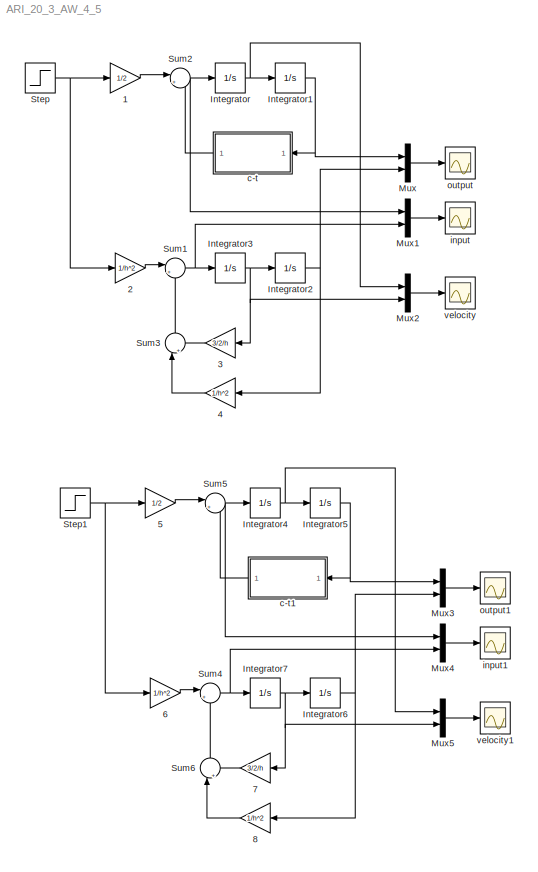
MODEL ARI_20_3_AW_4_5
KIND model
BLOCK [Gain] 1
  Gain = 1/2
  OutDataTypeStr = Inherit: Inherit via internal rule
  ParamDataTypeStr = Inherit: Inherit via internal rule
  SID = 1
  SaturateOnIntegerOverflow = off
BLOCK [Gain] 2
  Gain = 1/h^2
  OutDataTypeStr = Inherit: Inherit via internal rule
  ParamDataTypeStr = Inherit: Inherit via internal rule
  SID = 2
  SaturateOnIntegerOverflow = off
BLOCK [Gain] 3
  Gain = 3/2/h
  OutDataTypeStr = Inherit: Inherit via internal rule
  ParamDataTypeStr = Inherit: Inherit via internal rule
  SID = 3
  SampleTime = h
  SaturateOnIntegerOverflow = off
BLOCK [Gain] 4
  Gain = 1/h^2
  OutDataTypeStr = Inherit: Inherit via internal rule
  ParamDataTypeStr = Inherit: Inherit via internal rule
  SID = 4
  SampleTime = h
  SaturateOnIntegerOverflow = off
BLOCK [Gain] 5
  Gain = 1/2
  OutDataTypeStr = Inherit: Inherit via internal rule
  ParamDataTypeStr = Inherit: Inherit via internal rule
  SID = 5
  SaturateOnIntegerOverflow = off
BLOCK [Gain] 6
  Gain = 1/h^2
  OutDataTypeStr = Inherit: Inherit via internal rule
  ParamDataTypeStr = Inherit: Inherit via internal rule
  SID = 6
  SaturateOnIntegerOverflow = off
BLOCK [Gain] 7
  Gain = 3/2/h
  OutDataTypeStr = Inherit: Inherit via internal rule
  ParamDataTypeStr = Inherit: Inherit via internal rule
  SID = 7
  SampleTime = h
  SaturateOnIntegerOverflow = off
BLOCK [Gain] 8
  Gain = 1/h^2
  OutDataTypeStr = Inherit: Inherit via internal rule
  ParamDataTypeStr = Inherit: Inherit via internal rule
  SID = 8
  SampleTime = h
  SaturateOnIntegerOverflow = off
BLOCK [Integrator] Integrator
  Ports = [1, 1]
  SID = 9
BLOCK [Integrator] Integrator1
  Ports = [1, 1]
  SID = 10
BLOCK [Integrator] Integrator2
  Ports = [1, 1]
  SID = 11
BLOCK [Integrator] Integrator3
  Ports = [1, 1]
  SID = 12
BLOCK [Integrator] Integrator4
  InitialCondition = 2
  Ports = [1, 1]
  SID = 13
BLOCK [Integrator] Integrator5
  InitialCondition = -1
  Ports = [1, 1]
  SID = 14
BLOCK [Integrator] Integrator6
  InitialCondition = -1
  Ports = [1, 1]
  SID = 15
BLOCK [Integrator] Integrator7
  InitialCondition = 2
  Ports = [1, 1]
  SID = 16
BLOCK [Mux] Mux
  DisplayOption = bar
  Inputs = 2
  Ports = [2, 1]
  SID = 17
BLOCK [Mux] Mux1
  DisplayOption = bar
  Inputs = 2
  Ports = [2, 1]
  SID = 18
BLOCK [Mux] Mux2
  DisplayOption = bar
  Inputs = 2
  Ports = [2, 1]
  SID = 19
BLOCK [Mux] Mux3
  DisplayOption = bar
  Inputs = 2
  Ports = [2, 1]
  SID = 20
BLOCK [Mux] Mux4
  DisplayOption = bar
  Inputs = 2
  Ports = [2, 1]
  SID = 21
BLOCK [Mux] Mux5
  DisplayOption = bar
  Inputs = 2
  Ports = [2, 1]
  SID = 22
BLOCK [Step] Step
  SID = 23
  SampleTime = 0
  Time = 0
BLOCK [Step] Step1
  SID = 24
  SampleTime = 0
  Time = 0
BLOCK [Sum] Sum1
  IconShape = round
  InputSameDT = off
  Inputs = |+-
  OutDataTypeStr = Inherit: Inherit via internal rule
  Ports = [2, 1]
  SID = 25
  SaturateOnIntegerOverflow = off
BLOCK [Sum] Sum2
  IconShape = round
  InputSameDT = off
  Inputs = |+-
  OutDataTypeStr = Inherit: Inherit via internal rule
  Ports = [2, 1]
  SID = 26
  SaturateOnIntegerOverflow = off
BLOCK [Sum] Sum3
  IconShape = round
  InputSameDT = off
  Inputs = |++
  OutDataTypeStr = Inherit: Inherit via internal rule
  Ports = [2, 1]
  SID = 27
  SaturateOnIntegerOverflow = off
BLOCK [Sum] Sum4
  IconShape = round
  InputSameDT = off
  Inputs = |+-
  OutDataTypeStr = Inherit: Inherit via internal rule
  Ports = [2, 1]
  SID = 28
  SaturateOnIntegerOverflow = off
BLOCK [Sum] Sum5
  IconShape = round
  InputSameDT = off
  Inputs = |+-
  OutDataTypeStr = Inherit: Inherit via internal rule
  Ports = [2, 1]
  SID = 29
  SaturateOnIntegerOverflow = off
BLOCK [Sum] Sum6
  IconShape = round
  InputSameDT = off
  Inputs = |++
  OutDataTypeStr = Inherit: Inherit via internal rule
  Ports = [2, 1]
  SID = 30
  SaturateOnIntegerOverflow = off
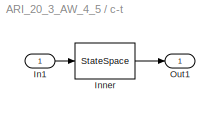
BLOCK [SubSystem] c-t
  FunctionWithSeparateData = off
  MaskCallbackString = |||
  MaskDescription = Polynomial matrix fraction description of a linear system.\n\nThis block represents a linear system defined by the polynomial matrix fraction of its transfer function.
  MaskDisplay = droots([-.5], [-2], 2)\n
  MaskEnableString = on,on,on,on
  MaskHelp = This block represents a linear system [<I>A,B,C,D</I>] defined by the polynomial matrix fraction (<I>PMF</I>) of its transfer function <I>T</I>.  \n<p>\n<b>Left Matrix Fraction</b> item of the popup menu <b>Type</b> indicates the transfer function in the form of <I>left PMF</I>:  \n<p>\n<I>T</I> = inv(<I>Q</I>) <I>P</I>.\n<p> \n<b>Right Matrix Fraction</b> item is used if the transfer function is ...<+1109ch>
  MaskHideContents = off
  MaskIconFrame = on
  MaskIconOpaque = on
  MaskIconRotate = none
  MaskIconUnits = autoscale
  MaskInitialization = Label = 'xxx';\n[A,B,C,D,Label,var] = polymask2(F, fvar, length(InCon));\nupdate;\n
  MaskPortRotate = default
  MaskPromptString = PMF Object:|Initial states:|Sample time (discrete time only):|Force variable:
  MaskStyleString = edit,edit,edit,popup(No change|s   (continous time)|p   (continous time)|z      (discrete time)|q      (discrete time)|d      (discrete time)|z^-1 (discrete time))
  MaskToolTipString = on,on,on,on
  MaskTunableValueString = on,on,on,on
  MaskType = PMF Block
  MaskValueString = 2*(s+.5)/(s+2)|[ ]|1|No change
  MaskVariables = F=&1;InCon=@2;SampTime=@3;fvar=@4;
  MaskVisibilityString = on,on,on,on
  MinAlgLoopOccurrences = off
  Opaque = off
  Ports = [1, 1]
  PropExecContextOutsideSubsystem = off
  RTWSystemCode = Auto
  RequestExecContextInheritance = off
  SID = 31
BLOCK [Inport] c-t/In1
  IconDisplay = Port number
  SID = 32
BLOCK [StateSpace] c-t/Inner
  A = A
  B = B
  C = C
  D = D
  SID = 33
  X0 = InCon
BLOCK [Outport] c-t/Out1
  IconDisplay = Port number
  SID = 34
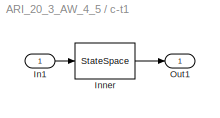
BLOCK [SubSystem] c-t1
  FunctionWithSeparateData = off
  MaskCallbackString = |||
  MaskDescription = Polynomial matrix fraction description of a linear system.\n\nThis block represents a linear system defined by the polynomial matrix fraction of its transfer function.
  MaskDisplay = droots([-.5], [-2], 2)\n
  MaskEnableString = on,on,on,on
  MaskHelp = This block represents a linear system [<I>A,B,C,D</I>] defined by the polynomial matrix fraction (<I>PMF</I>) of its transfer function <I>T</I>.  \n<p>\n<b>Left Matrix Fraction</b> item of the popup menu <b>Type</b> indicates the transfer function in the form of <I>left PMF</I>:  \n<p>\n<I>T</I> = inv(<I>Q</I>) <I>P</I>.\n<p> \n<b>Right Matrix Fraction</b> item is used if the transfer function is ...<+1109ch>
  MaskHideContents = off
  MaskIconFrame = on
  MaskIconOpaque = on
  MaskIconRotate = none
  MaskIconUnits = autoscale
  MaskInitialization = Label = 'xxx';\n[A,B,C,D,Label,var] = polymask2(F, fvar, length(InCon));\nupdate;\n
  MaskPortRotate = default
  MaskPromptString = PMF Object:|Initial states:|Sample time (discrete time only):|Force variable:
  MaskStyleString = edit,edit,edit,popup(No change|s   (continous time)|p   (continous time)|z      (discrete time)|q      (discrete time)|d      (discrete time)|z^-1 (discrete time))
  MaskToolTipString = on,on,on,on
  MaskTunableValueString = on,on,on,on
  MaskType = PMF Block
  MaskValueString = 2*(s+.5)/(s+2)|[ ]|1|No change
  MaskVariables = F=&1;InCon=@2;SampTime=@3;fvar=@4;
  MaskVisibilityString = on,on,on,on
  MinAlgLoopOccurrences = off
  Opaque = off
  Ports = [1, 1]
  PropExecContextOutsideSubsystem = off
  RTWSystemCode = Auto
  RequestExecContextInheritance = off
  SID = 35
BLOCK [Inport] c-t1/In1
  IconDisplay = Port number
  SID = 36
BLOCK [StateSpace] c-t1/Inner
  A = A
  B = B
  C = C
  D = D
  SID = 37
  X0 = InCon
BLOCK [Outport] c-t1/Out1
  IconDisplay = Port number
  SID = 38
BLOCK [Scope] input
  DataFormat = StructureWithTime
  Floating = off
  NumInputPorts = 1
  Ports = [1]
  SID = 39
  SampleTime = 0
  SaveName = ScopeData2
BLOCK [Scope] input1
  DataFormat = StructureWithTime
  Floating = off
  NumInputPorts = 1
  Ports = [1]
  SID = 40
  SampleTime = 0
  SaveName = ScopeData1
BLOCK [Scope] output
  DataFormat = StructureWithTime
  Floating = off
  NumInputPorts = 1
  Ports = [1]
  SID = 41
  SampleTime = 0
  SaveName = ScopeData3
BLOCK [Scope] output1
  DataFormat = StructureWithTime
  Floating = off
  NumInputPorts = 1
  Ports = [1]
  SID = 42
  SampleTime = 0
  SaveName = ScopeData4
BLOCK [Scope] velocity
  DataFormat = StructureWithTime
  Floating = off
  NumInputPorts = 1
  Ports = [1]
  SID = 43
  SampleTime = 0
BLOCK [Scope] velocity1
  DataFormat = StructureWithTime
  Floating = off
  NumInputPorts = 1
  Ports = [1]
  SID = 44
  SampleTime = 0
  SaveName = ScopeData5
LINE 1:1 -> Sum2:1
LINE 2:1 -> Sum1:1
LINE 3:1 -> Sum3:2
LINE 4:1 -> Sum3:1
LINE 5:1 -> Sum5:1
LINE 6:1 -> Sum4:1
LINE 7:1 -> Sum6:2
LINE 8:1 -> Sum6:1
NET Integrator1:1 -> Mux:1, c-t:1
NET Integrator2:1 -> 4:1, Mux:2
NET Integrator3:1 -> 3:1, Integrator2:1, Mux2:2
NET Integrator4:1 -> Integrator5:1, Mux5:1
NET Integrator5:1 -> Mux3:1, c-t1:1
NET Integrator6:1 -> 8:1, Mux3:2
NET Integrator7:1 -> 7:1, Integrator6:1, Mux5:2
NET Integrator:1 -> Integrator1:1, Mux2:1
LINE Mux1:1 -> input:1
LINE Mux2:1 -> velocity:1
LINE Mux3:1 -> output1:1
LINE Mux4:1 -> input1:1
LINE Mux5:1 -> velocity1:1
LINE Mux:1 -> output:1
NET Step1:1 -> 5:1, 6:1
NET Step:1 -> 1:1, 2:1
NET Sum1:1 -> Integrator3:1, Mux1:2
NET Sum2:1 -> Integrator:1, Mux1:1
LINE Sum3:1 -> Sum1:2
NET Sum4:1 -> Integrator7:1, Mux4:2
NET Sum5:1 -> Integrator4:1, Mux4:1
LINE Sum6:1 -> Sum4:2
LINE c-t/In1:1 -> c-t/Inner:1
LINE c-t/Inner:1 -> c-t/Out1:1
LINE c-t1/In1:1 -> c-t1/Inner:1
LINE c-t1/Inner:1 -> c-t1/Out1:1
LINE c-t1:1 -> Sum5:2
LINE c-t:1 -> Sum2:2
note: NET lines group one-source signal fan-out (src -> all destinations, sorted); 1:1 wires keep LINE
